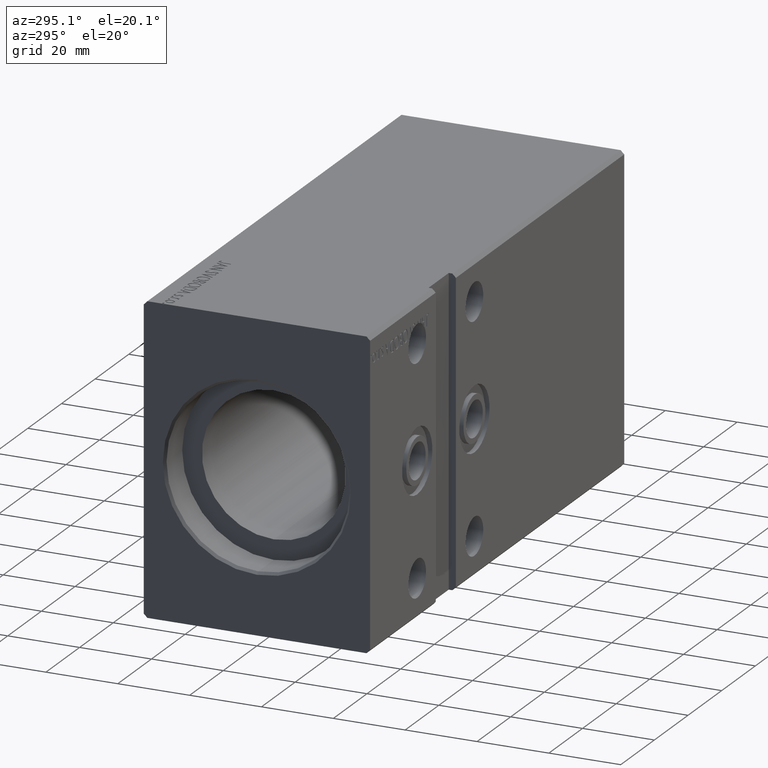
[diagram: clean part render]
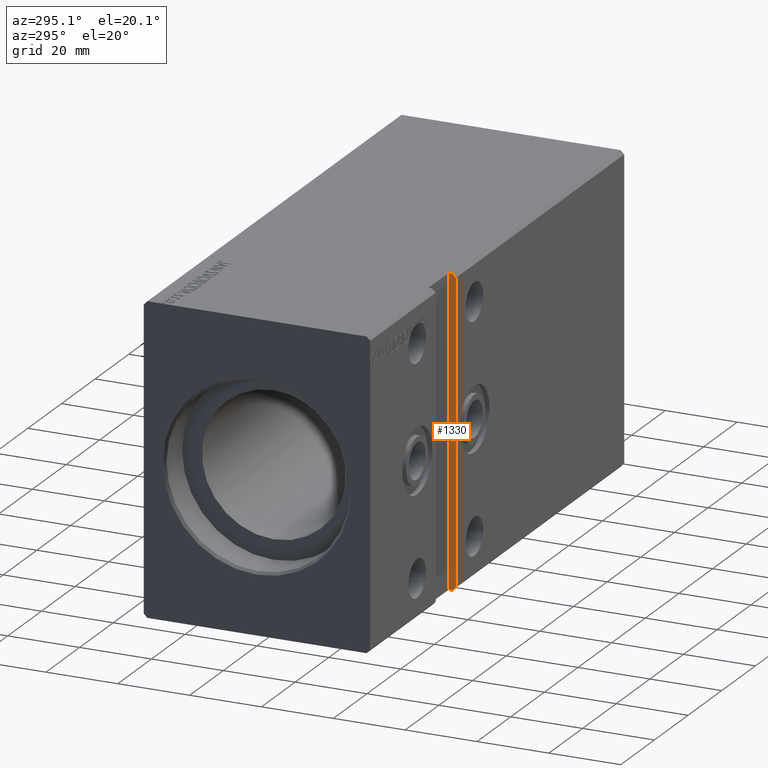
[diagram: same view with one face highlighted and labeled with its STEP entity id]
A machine part, auxiliary view. The second image highlights one B-rep face of the part: STEP entity #1330.
In plain terms, the highlighted planar face has unit normal (1, -0, 0).
Its self-contained STEP definition (entity closure, byte-faithful):
#152 = DIRECTION ( 'NONE',  ( -0.000000000000000000, -0.000000000000000000, 1.000000000000000000 ) ) ;
#1330 = ADVANCED_FACE ( 'NONE', ( #20136 ), #13965, .F. ) ;
#1765 = VECTOR ( 'NONE', #152, 1000.000000000000000 ) ;
#2584 = CARTESIAN_POINT ( 'NONE',  ( 51.00000000000000000, -29.50000000000000000, -42.50000000000000711 ) ) ;
#3596 = ORIENTED_EDGE ( 'NONE', *, *, #25932, .T. ) ;
#4135 = CARTESIAN_POINT ( 'NONE',  ( 51.00000000000000000, -31.50000000000000000, -41.50000000000000711 ) ) ;
#4866 = CARTESIAN_POINT ( 'NONE',  ( 51.00000000000000000, -31.50000000000000000, 41.49999999999999289 ) ) ;
#6322 = LINE ( 'NONE', #28506, #1765 ) ;
#6329 = CARTESIAN_POINT ( 'NONE',  ( 51.00000000000000000, -29.50000000000000000, -42.50000000000000711 ) ) ;
#6352 = LINE ( 'NONE', #30820, #7486 ) ;
#6417 = EDGE_CURVE ( 'NONE', #35044, #20550, #40267, .T. ) ;
#7486 = VECTOR ( 'NONE', #34306, 1000.000000000000114 ) ;
#8023 = CARTESIAN_POINT ( 'NONE',  ( 51.00000000000000000, -30.50000000000000711, -42.50000000000000711 ) ) ;
#8197 = CARTESIAN_POINT ( 'NONE',  ( 51.00000000000000000, -30.50000000000000355, 42.49999999999999289 ) ) ;
#8308 = CARTESIAN_POINT ( 'NONE',  ( 51.00000000000000000, -31.50000000000000000, 42.49999999999999289 ) ) ;
#10007 = VERTEX_POINT ( 'NONE', #4866 ) ;
#10683 = DIRECTION ( 'NONE',  ( 1.000000000000000000, -0.000000000000000000, 0.000000000000000000 ) ) ;
#11914 = ORIENTED_EDGE ( 'NONE', *, *, #32283, .F. ) ;
#12565 = ORIENTED_EDGE ( 'NONE', *, *, #6417, .F. ) ;
#13965 = PLANE ( 'NONE',  #24183 ) ;
#15524 = LINE ( 'NONE', #2584, #39648 ) ;
#16473 = ORIENTED_EDGE ( 'NONE', *, *, #19473, .F. ) ;
#18813 = DIRECTION ( 'NONE',  ( -0.000000000000000000, -1.000000000000000000, -5.507058653894625237E-17 ) ) ;
#19473 = EDGE_CURVE ( 'NONE', #26256, #38242, #6352, .T. ) ;
#20136 = FACE_OUTER_BOUND ( 'NONE', #38389, .T. ) ;
#20550 = VERTEX_POINT ( 'NONE', #8197 ) ;
#20757 = CARTESIAN_POINT ( 'NONE',  ( 51.00000000000000000, -29.50000000000000000, 42.49999999999999289 ) ) ;
#21316 = VECTOR ( 'NONE', #32553, 1000.000000000000000 ) ;
#23034 = ORIENTED_EDGE ( 'NONE', *, *, #36326, .T. ) ;
#23973 = VECTOR ( 'NONE', #33775, 999.9999999999998863 ) ;
#24125 = CARTESIAN_POINT ( 'NONE',  ( 50.99999999999999289, -30.50000000000000355, 42.49999999999999289 ) ) ;
#24183 = AXIS2_PLACEMENT_3D ( 'NONE', #20757, #10683, #32879 ) ;
#25932 = EDGE_CURVE ( 'NONE', #26256, #10007, #38328, .T. ) ;
#26256 = VERTEX_POINT ( 'NONE', #4135 ) ;
#26868 = EDGE_CURVE ( 'NONE', #20550, #10007, #34379, .T. ) ;
#28506 = CARTESIAN_POINT ( 'NONE',  ( 51.00000000000000000, -29.50000000000000000, 42.49999999999999289 ) ) ;
#30820 = CARTESIAN_POINT ( 'NONE',  ( 50.99999999999999289, -31.50000000000000000, -41.50000000000000711 ) ) ;
#31192 = CARTESIAN_POINT ( 'NONE',  ( 51.00000000000000000, -29.50000000000000000, 42.49999999999999289 ) ) ;
#32283 = EDGE_CURVE ( 'NONE', #33086, #35044, #6322, .T. ) ;
#32553 = DIRECTION ( 'NONE',  ( -0.000000000000000000, -0.000000000000000000, 1.000000000000000000 ) ) ;
#32879 = DIRECTION ( 'NONE',  ( 0.000000000000000000, 0.000000000000000000, -1.000000000000000000 ) ) ;
#33086 = VERTEX_POINT ( 'NONE', #6329 ) ;
#33775 = DIRECTION ( 'NONE',  ( 0.000000000000000000, -0.7071067811865462405, -0.7071067811865489050 ) ) ;
#34306 = DIRECTION ( 'NONE',  ( 0.000000000000000000, 0.7071067811865451302, -0.7071067811865500152 ) ) ;
#34379 = LINE ( 'NONE', #24125, #23973 ) ;
#35044 = VERTEX_POINT ( 'NONE', #31192 ) ;
#35525 = ORIENTED_EDGE ( 'NONE', *, *, #26868, .F. ) ;
#36326 = EDGE_CURVE ( 'NONE', #33086, #38242, #15524, .T. ) ;
#37393 = CARTESIAN_POINT ( 'NONE',  ( 51.00000000000000000, -29.50000000000000000, 42.49999999999999289 ) ) ;
#38242 = VERTEX_POINT ( 'NONE', #8023 ) ;
#38328 = LINE ( 'NONE', #8308, #21316 ) ;
#38389 = EDGE_LOOP ( 'NONE', ( #12565, #11914, #23034, #16473, #3596, #35525 ) ) ;
#39648 = VECTOR ( 'NONE', #18813, 1000.000000000000000 ) ;
#40070 = DIRECTION ( 'NONE',  ( -0.000000000000000000, -1.000000000000000000, -5.507058653894625237E-17 ) ) ;
#40267 = LINE ( 'NONE', #37393, #40606 ) ;
#40606 = VECTOR ( 'NONE', #40070, 1000.000000000000000 ) ;